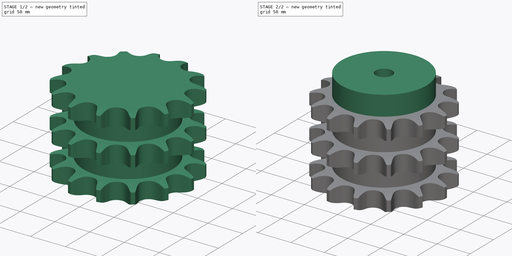
[diagram: build sequence overview — one tinted view per stage of 2, left to right]
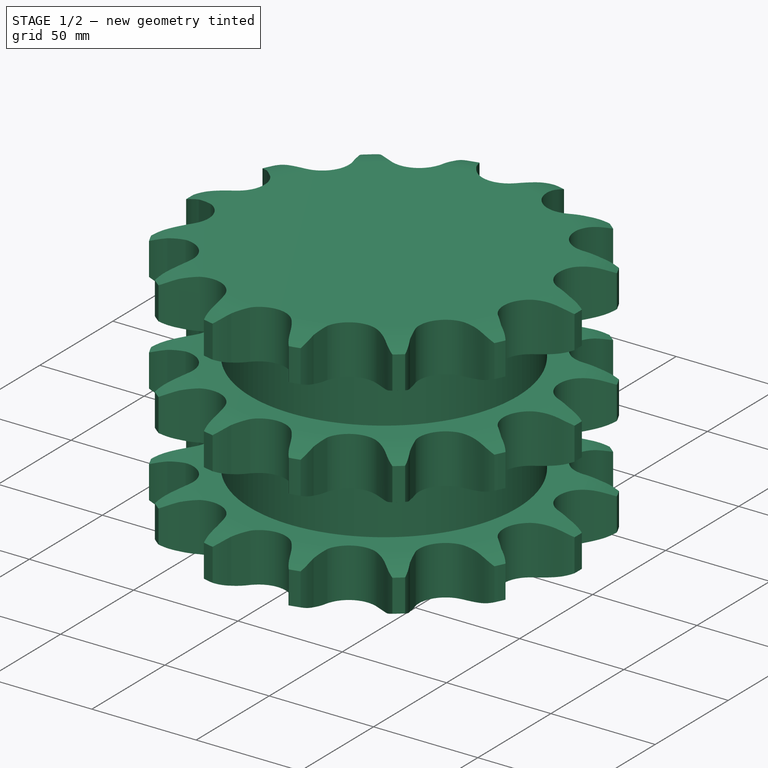
[diagram: stage 1 of 2 — iso view after this stage's code; geometry added in this stage tinted green]
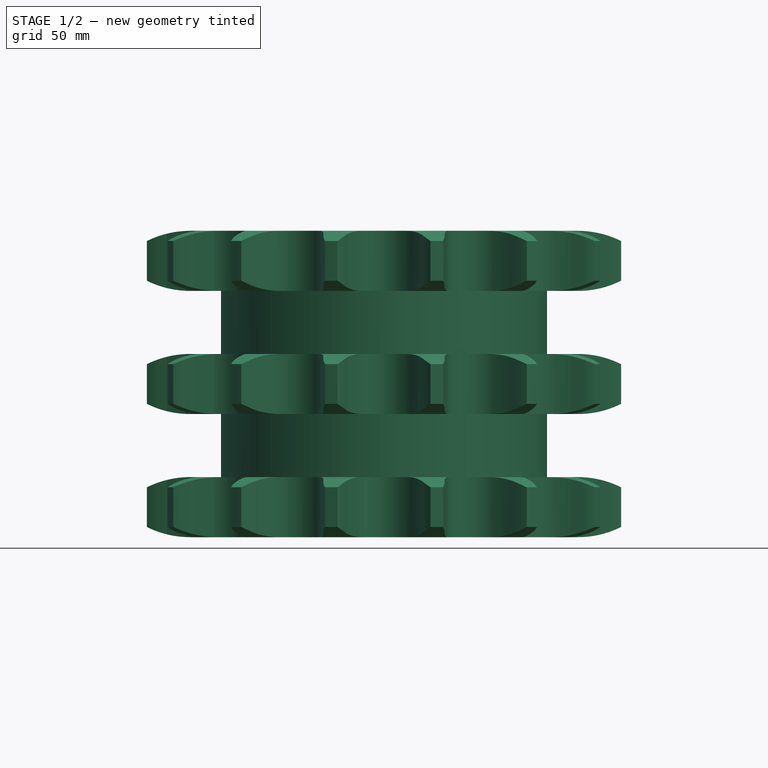
[diagram: stage 1 of 2 — front view after this stage's code; geometry added in this stage tinted green]
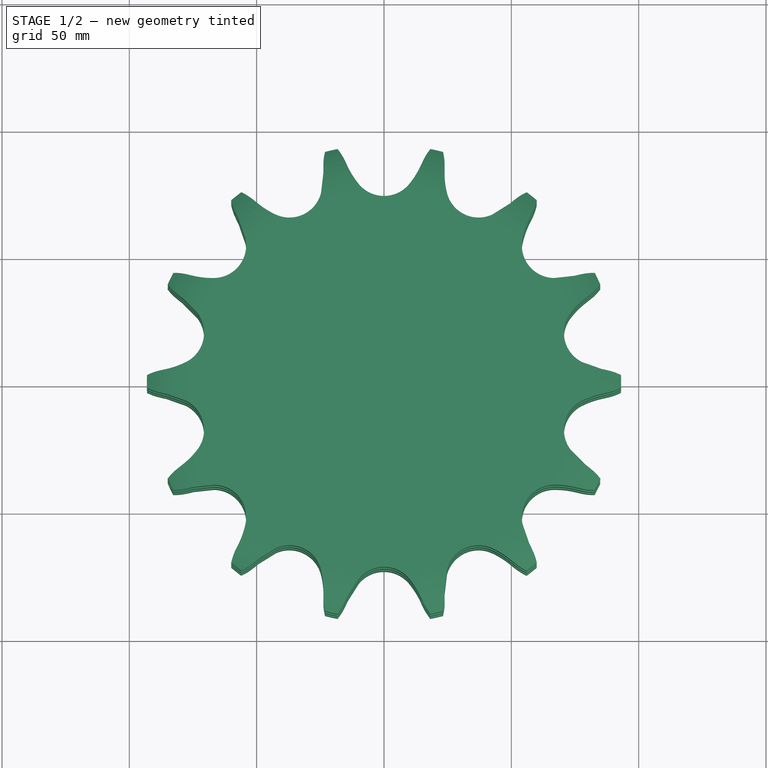
[diagram: stage 1 of 2 — top view after this stage's code; geometry added in this stage tinted green]
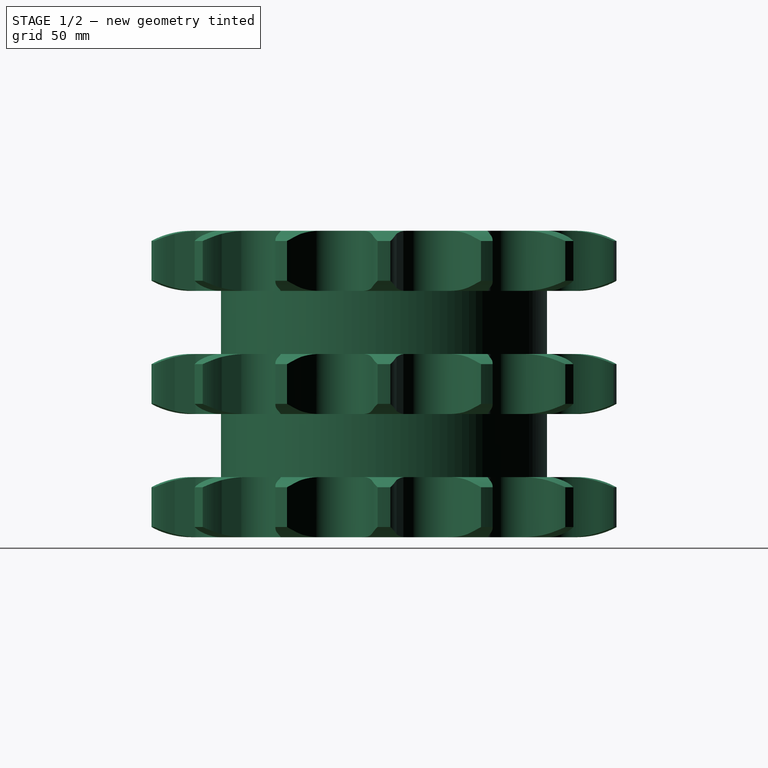
[diagram: stage 1 of 2 — right view after this stage's code; geometry added in this stage tinted green]
FCSTD DOCUMENT  (FreeCAD 0.19R24291 (Git))
Label: Sprocket ANSI triplex 1 ½x1 z14
License: All rights reserved
LicenseURL: http://en.wikipedia.org/wiki/All_rights_reserved
objects: Sketcher::SketchObject×3, PartDesign::Pad×2, Spreadsheet::Sheet×1, Part::Part2DObjectPython×1, PartDesign::Groove×1, PartDesign::Pocket×1, PartDesign::Body×1
note: 13 computed .brp shape members not serialized (recipe doc carries the construction recipe); baked Part::Feature solids carry a one-line shape summary decoded from their .brp

FEATURE [Spreadsheet::Sheet] Spreadsheet  label="Data"
  cells = A1=P (Pitch); B1=Wc (Chain width); C1=Dr (Roller diameter); D1=Tr (Tooth radius); E1=Rw (Radius width); F1=Wt1 (Tooth width 1); G1=Wt3 (Tooth width 3); H1=z (Number of teeth); I1=De (External Diameter); J1=Dp (pitch diameter); K1=d (Hub diameter); L1=D (Hole diameter); M1=H (Total height); A2(P)==38.1mm; B2(Wc)==25.4mm; C2(Dr)==25.4mm; D2(Tr)==38mm; E2(Rw)==4mm; F2(Wt1)==23.6mm; G2(Wt3)==120.3mm; H2(z)=14; I2(De)==186.2mm; J2(Dp)==171.22mm; K2(d)==128mm; L2(D)==25mm; M2(H)==150mm
FEATURE [Part::Part2DObjectPython] Sprocket  label="Teeth sketch"  # Draft 2D object (typed FeaturePython)
  ANSISize = 120
  NumberOfTeeth = 14
  Pitch = 38.1
  RollerDiameter = 25.4
  expr: NumberOfTeeth = <<Data>>.z
  expr: Pitch = <<Data>>.P
  expr: RollerDiameter = <<Data>>.Dr
FEATURE [PartDesign::Pad] Pad  label="Teeth"
  Direction = (1,1,1)
  Length = 120.3
  Length2 = 100
  Profile = -> Sprocket
  Type = 0
  expr: Length = Spreadsheet.Wt3
FEATURE [Sketcher::SketchObject] Sketch  label="Radius"
  FullyConstrained = true
  MapMode = 5
  Placement = pos=(0,0,0) rot=(1,0,0;1.5708rad)
  Support = -> [XZ_Plane]
  expr: .Constraints.Rw = <<Data>>.Rw
  expr: .Constraints.Wt1 = <<Data>>.Wt1
  expr: .Constraints.Re = <<Data>>.De / 2
  expr: .Constraints.Wt3 = Spreadsheet.Wt3
  expr: .Constraints.Tr = <<Data>>.Tr
  expr: .Constraints.r = <<Data>>.d / 2
  sketch-geometry (26):
    g0: ArcOfCircle CenterX=76.1294 CenterY=38 CenterZ=0 NormalX=0 NormalY=0 NormalZ=1 AngleXU=0 Radius=38 StartAngle=4.71239 EndAngle=5.17534
    g1: LineSegment StartX=76.1294 StartY=0 StartZ=0 EndX=103.1 EndY=0 EndZ=0
    g2: LineSegment StartX=103.1 StartY=120.3 StartZ=0 EndX=103.1 EndY=0 EndZ=0
    g3: ArcOfCircle CenterX=76.1294 CenterY=-14.4 CenterZ=0 NormalX=0 NormalY=0 NormalZ=1 AngleXU=0 Radius=38 StartAngle=1.10784 EndAngle=1.5708
    g4: LineSegment StartX=93.1 StartY=4 StartZ=0 EndX=93.1 EndY=19.6 EndZ=0
    g5: ArcOfCircle CenterX=76.1294 CenterY=134.7 CenterZ=0 NormalX=0 NormalY=0 NormalZ=1 AngleXU=0 Radius=38 StartAngle=4.71239 EndAngle=5.17534
    g6: LineSegment StartX=93.1 StartY=100.7 StartZ=0 EndX=93.1 EndY=116.3 EndZ=0
    g7: LineSegment StartX=76.1294 StartY=120.3 StartZ=0 EndX=103.1 EndY=120.3 EndZ=0
    g8: ArcOfCircle CenterX=76.1294 CenterY=82.3 CenterZ=0 NormalX=0 NormalY=0 NormalZ=1 AngleXU=0 Radius=38 StartAngle=1.10784 EndAngle=1.5708
    g9: LineSegment StartX=76.1294 StartY=96.7 StartZ=0 EndX=64 EndY=96.7 EndZ=0
    g10: LineSegment StartX=64 StartY=23.6 StartZ=0 EndX=76.1294 EndY=23.6 EndZ=0
    g11: LineSegment StartX=64 StartY=96.7 StartZ=0 EndX=64 EndY=71.95 EndZ=0
    g12: LineSegment StartX=64 StartY=23.6 StartZ=0 EndX=64 EndY=48.35 EndZ=0
    g13: LineSegment StartX=64 StartY=71.95 StartZ=0 EndX=76.1294 EndY=71.95 EndZ=0
    g14: LineSegment StartX=64 StartY=48.35 StartZ=0 EndX=76.1294 EndY=48.35 EndZ=0
    g15: LineSegment StartX=93.1 StartY=67.95 StartZ=0 EndX=93.1 EndY=52.35 EndZ=0
    g16: LineSegment StartX=93.1 StartY=100.7 StartZ=0 EndX=93.1 EndY=67.95 EndZ=0
    g17: LineSegment StartX=93.1 StartY=52.35 StartZ=0 EndX=93.1 EndY=19.6 EndZ=0
    g18: ArcOfCircle CenterX=76.1294 CenterY=33.95 CenterZ=0 NormalX=0 NormalY=0 NormalZ=1 AngleXU=0 Radius=38 StartAngle=1.10784 EndAngle=1.5708
    g19: ArcOfCircle CenterX=76.1294 CenterY=86.35 CenterZ=0 NormalX=0 NormalY=0 NormalZ=1 AngleXU=0 Radius=38 StartAngle=4.71239 EndAngle=5.17534
    g20: LineSegment StartX=76.1294 StartY=71.95 StartZ=0 EndX=76.1294 EndY=48.35 EndZ=0
    g21: LineSegment StartX=76.1294 StartY=23.6 StartZ=0 EndX=76.1294 EndY=0 EndZ=0
    g22: LineSegment StartX=76.1294 StartY=120.3 StartZ=0 EndX=76.1294 EndY=96.7 EndZ=0
    g23: LineSegment StartX=64 StartY=71.95 StartZ=0 EndX=64 EndY=48.35 EndZ=0
    g24: LineSegment StartX=76.1294 StartY=23.6 StartZ=0 EndX=76.1294 EndY=48.35 EndZ=0
    g25: LineSegment StartX=76.1294 StartY=96.7 StartZ=0 EndX=76.1294 EndY=71.95 EndZ=0
  constraints (70):
    c: PointOnObject(g0,g-1)
    c: Radius(g0) = 38  'Tr'
    c: DistanceY(g0,g0) = 4  'Rw'
    c: PointOnObject(g1,g-1)
    c: Coincident(g2,g1)
    c: Vertical(g2)
    c: DistanceX(g0) = 93.1  'Re'
    c: Coincident(g4,g0)
    c: Vertical(g4)
    c: Coincident(g4,g3)
    c: Equal(g3,g0)
    c: Coincident(g6,g5)
    c: Vertical(g6)
    c: Coincident(g7,g2)
    c: Horizontal(g7)
    c: DistanceY(g0,g3) = 23.6  'Wt1'
    c: DistanceY(g2,g2) = 120.3  'Wt3'
    c: Coincident(g8,g6)
    c: Tangent(g8,g7) = 1.5708
    c: Equal(g0,g8)
    c: Equal(g6,g4)
    c: Horizontal(g9)
    c: Horizontal(g10)
    c: DistanceX(g9) = 64  'r'
    c: DistanceX(g6,g2) = 10
    c: Coincident(g11,g9)
    c: Vertical(g11)
    c: Coincident(g12,g10)
    c: Vertical(g12)
    c: Coincident(g13,g11)
    c: Horizontal(g13)
    c: Coincident(g14,g12)
    c: Horizontal(g14)
    c: Vertical(g15)
    c: Coincident(g16,g5)
    c: Coincident(g16,g15)
    c: Vertical(g16)
    c: Coincident(g17,g15)
    c: Coincident(g17,g3)
    c: Vertical(g17)
    c: Equal(g16,g17)
    c: Coincident(g18,g15)
    c: Coincident(g19,g15)
    c: Tangent(g19,g14) = -1.5708
    c: Tangent(g18,g13) = 1.5708
    c: Equal(g0,g19)
    c: Equal(g0,g18)
    c: Coincident(g20,g13)
    c: Coincident(g20,g14)
    c: Vertical(g20)
    c: Coincident(g21,g3)
    c: Coincident(g21,g0)
    c: Vertical(g21)
    c: Tangent(g9,g5) = 1.5708
    c: Tangent(g10,g3) = 1.5708
    c: Tangent(g1,g0) = -1.5708
    c: Equal(g21,g20)
    c: Coincident(g22,g7)
    c: Coincident(g22,g5)
    c: Vertical(g22)
    c: Equal(g0,g5)
    c: Coincident(g23,g11)
    c: Coincident(g23,g12)
    c: Vertical(g23)
    c: Coincident(g24,g3)
    c: Coincident(g24,g14)
    c: Vertical(g24)
    c: Coincident(g25,g5)
    c: Coincident(g25,g13)
    c: Vertical(g25)
FEATURE [PartDesign::Groove] Groove  label="Teeth Radius"
  Angle = 360
  Axis = (-3e-16,3e-16,1)
  Base = (0,0,0)
  BaseFeature = -> Pad
  Profile = -> Sketch
  ReferenceAxis = -> Z_Axis
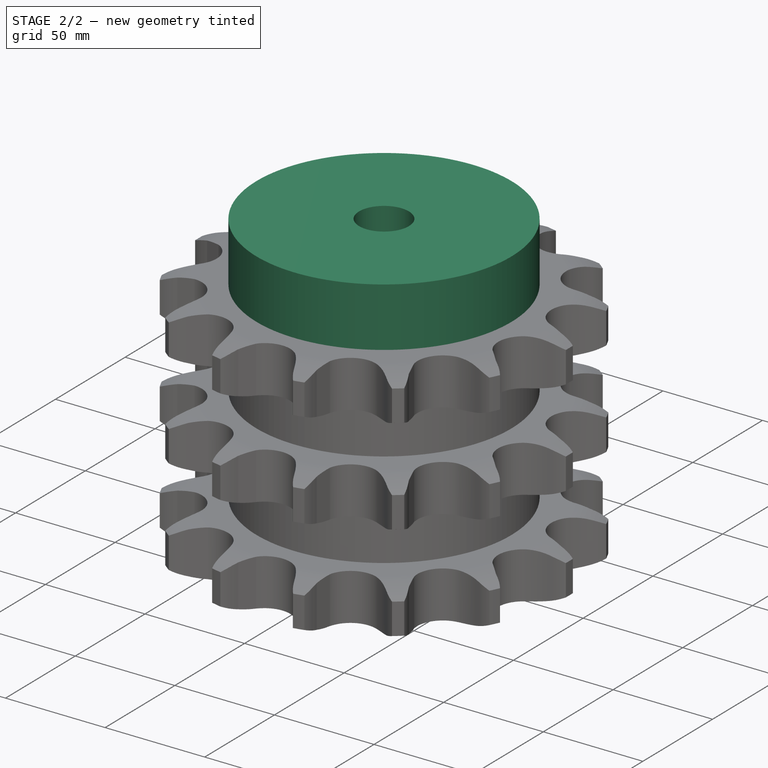
[diagram: stage 2 of 2 — iso view after this stage's code; geometry added in this stage tinted green]
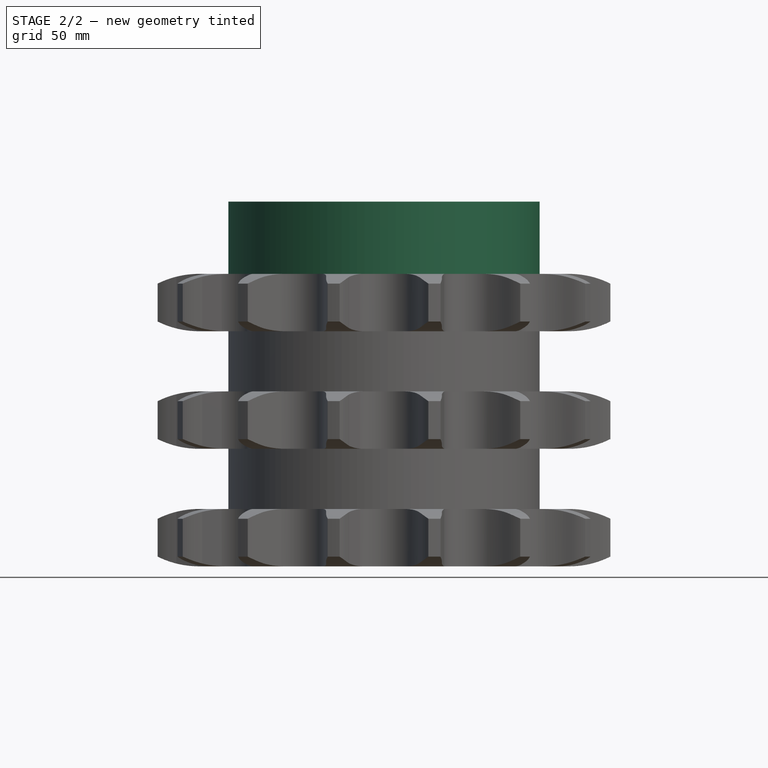
[diagram: stage 2 of 2 — front view after this stage's code; geometry added in this stage tinted green]
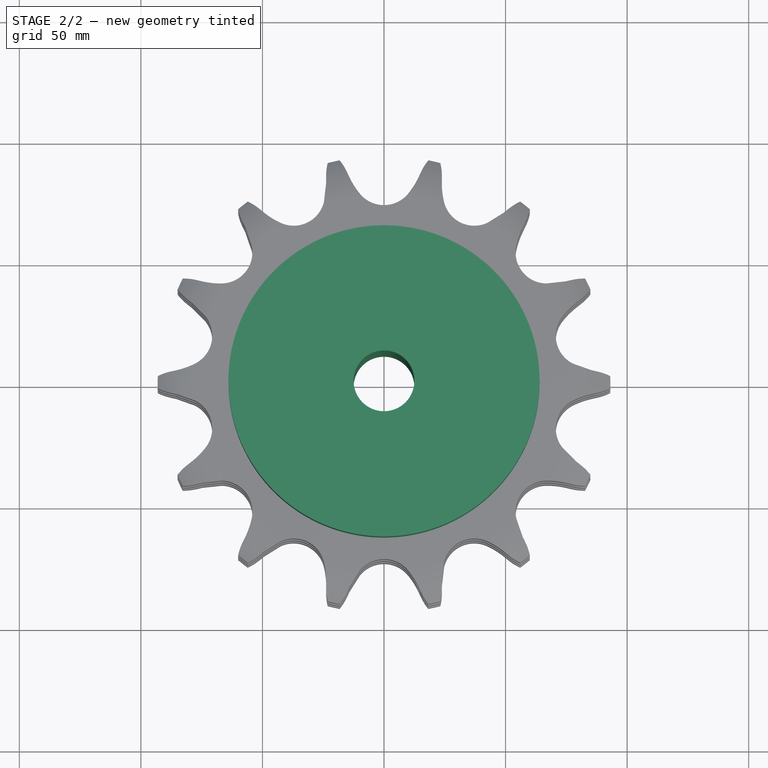
[diagram: stage 2 of 2 — top view after this stage's code; geometry added in this stage tinted green]
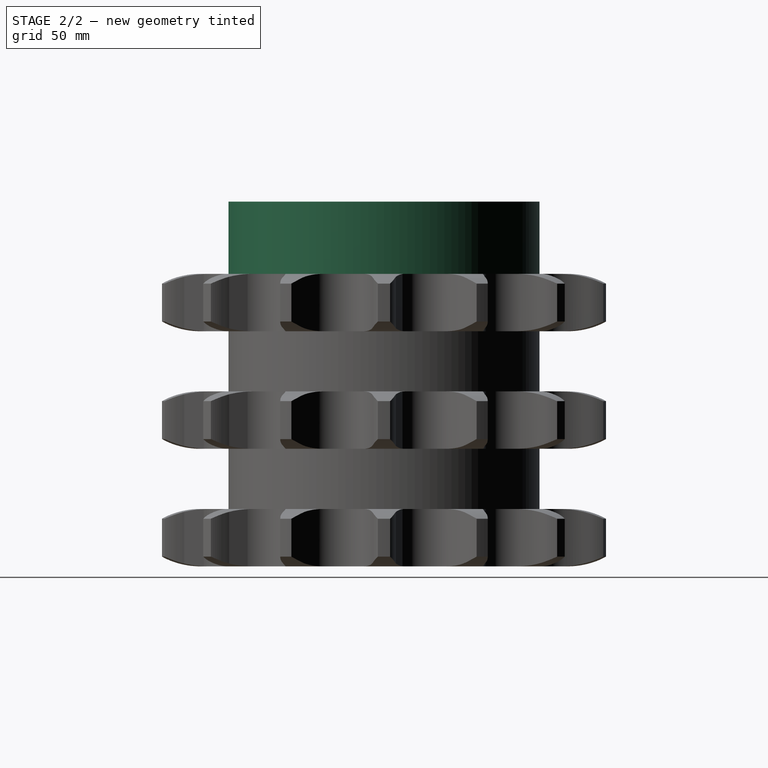
[diagram: stage 2 of 2 — right view after this stage's code; geometry added in this stage tinted green]
FEATURE [Sketcher::SketchObject] Sketch001  label="Hub sketch"
  FullyConstrained = true
  MapMode = 5
  Support = -> [XY_Plane]
  expr: .Constraints.r = <<Data>>.d
  sketch-geometry (1):
    g0: Circle CenterX=0 CenterY=0 CenterZ=0 NormalX=0 NormalY=0 NormalZ=1 AngleXU=0 Radius=64
  constraints (2):
    c: Coincident(g0,g-1)
    c: Diameter(g0) = 128  'r'
FEATURE [PartDesign::Pad] Pad001  label="Hub"
  BaseFeature = -> Groove
  Direction = (1,1,1)
  Length = 150
  Length2 = 100
  Profile = -> Sketch001
  Type = 0
  expr: Length = <<Data>>.H
FEATURE [Sketcher::SketchObject] Sketch002  label="Hole sketch"
  FullyConstrained = true
  MapMode = 5
  Support = -> [XY_Plane]
  expr: .Constraints.R = <<Data>>.D
  sketch-geometry (1):
    g0: Circle CenterX=0 CenterY=0 CenterZ=0 NormalX=0 NormalY=0 NormalZ=1 AngleXU=0 Radius=12.5
  constraints (2):
    c: Coincident(g0,g-1)
    c: Diameter(g0) = 25  'R'
FEATURE [PartDesign::Pocket] Pocket  label="Hole"
  BaseFeature = -> Pad001
  Length = 5
  Length2 = 100
  Midplane = true
  Profile = -> Sketch002
  Type = 1
FEATURE [PartDesign::Body] Body  label="Sprocket ANSI triplex 1 ½x1 z14"
  Group = -> [Sprocket,Pad,Sketch,Groove,Sketch001,Pad001,Sketch002,Pocket]
  Origin = -> Origin
  Tip = -> Pocket
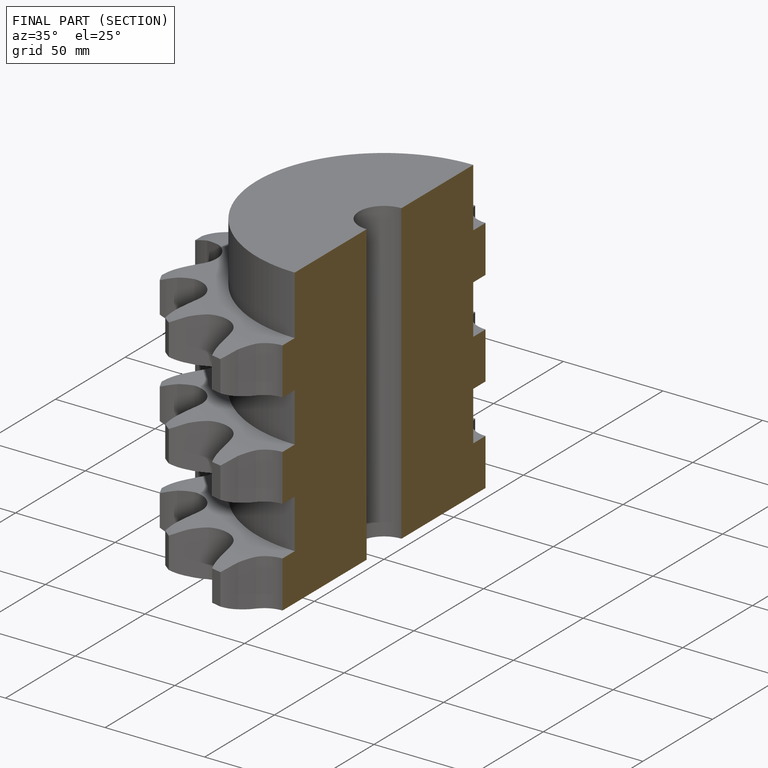
[diagram: finished part — half-section view (interior)]
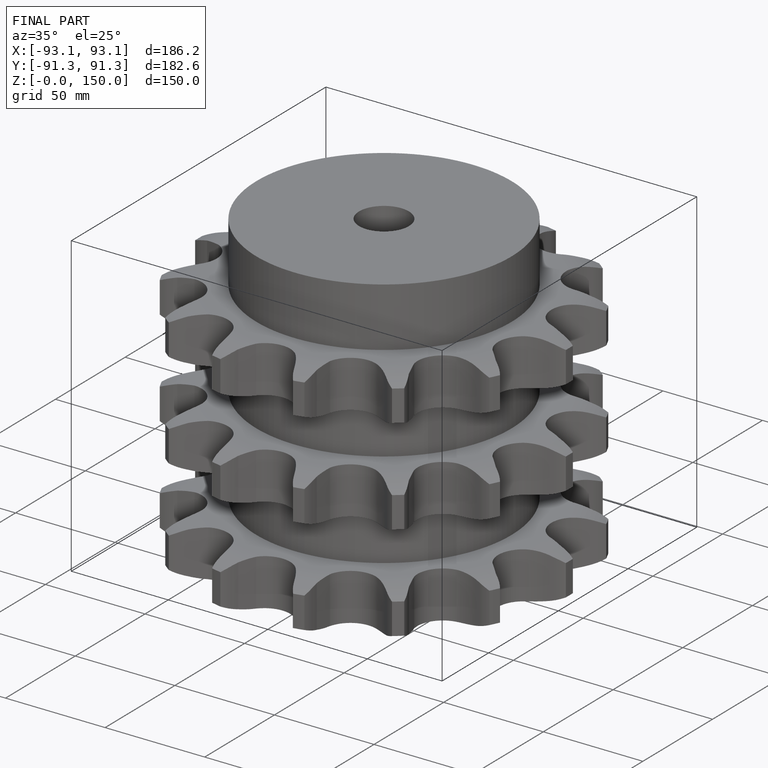
[diagram: finished part — iso view with bounding-box wireframe]
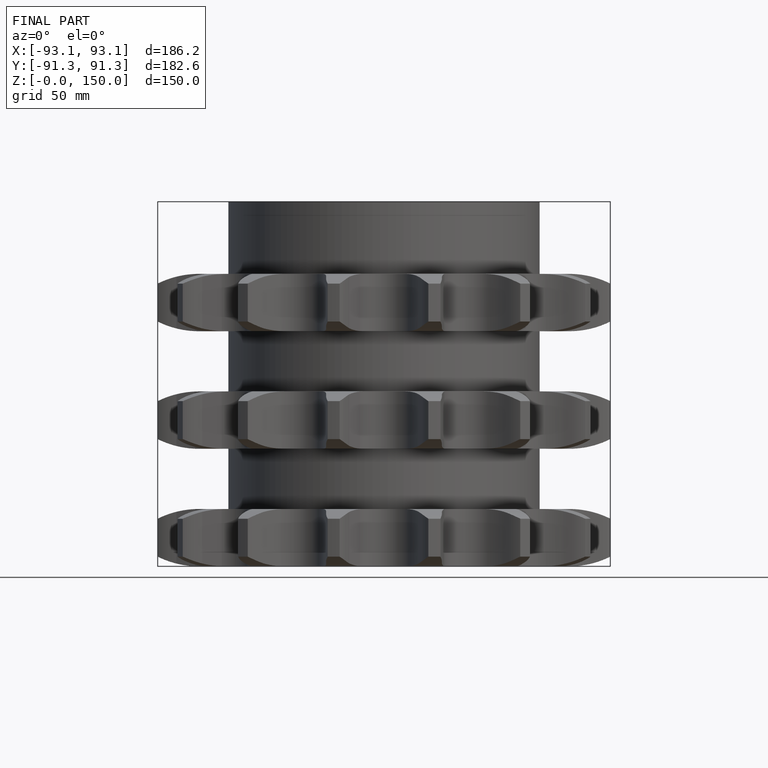
[diagram: finished part — front view with bounding-box wireframe]
